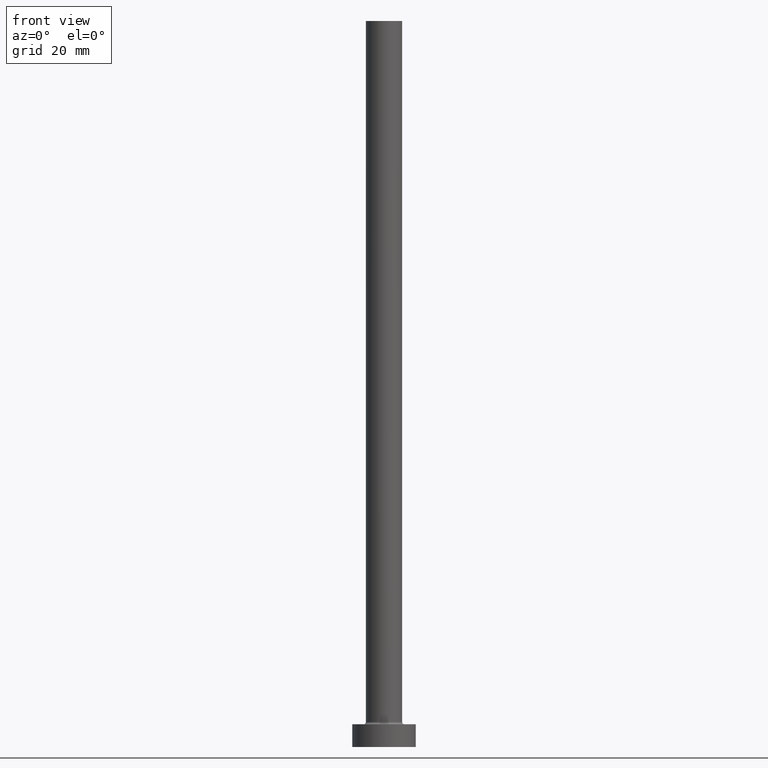
[diagram: clean part render]
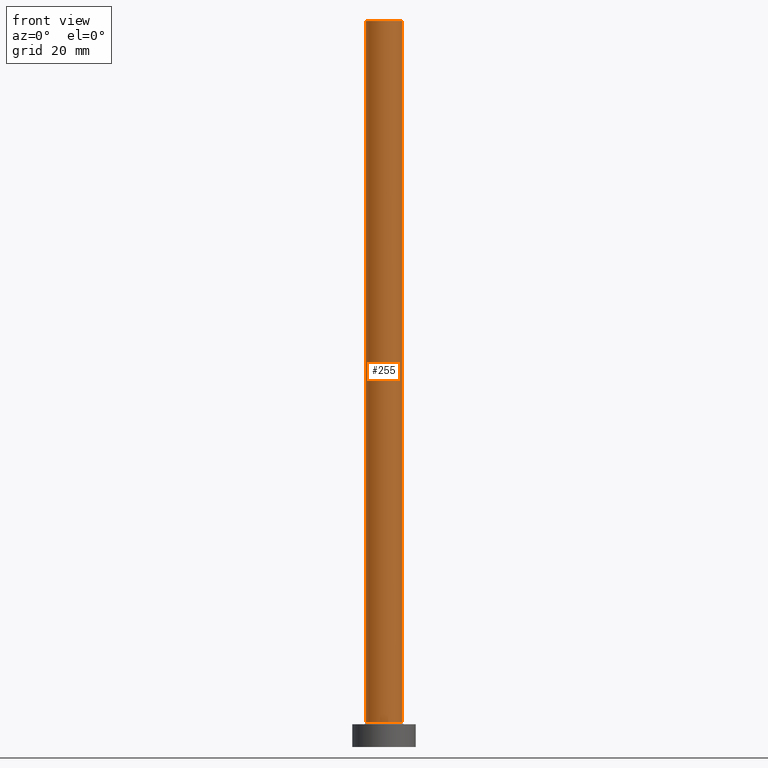
[diagram: same view with one face highlighted and labeled with its STEP entity id]
A machine part, front view. The second image highlights one B-rep face of the part: STEP entity #255.
In plain terms, the highlighted cylindrical surface (edge-blend (fillet) strip) has radius 4 mm, axis along (-0, -0, -1).
Its self-contained STEP definition (entity closure, byte-faithful):
#24 = DIRECTION ( 'NONE',  ( 1.000000000000000000, 0.000000000000000000, 0.000000000000000000 ) ) ;
#37 = VERTEX_POINT ( 'NONE', #348 ) ;
#39 = VERTEX_POINT ( 'NONE', #454 ) ;
#48 = CIRCLE ( 'NONE', #158, 4.000000000000000000 ) ;
#55 = CARTESIAN_POINT ( 'NONE',  ( 0.000000000000000000, 0.000000000000000000, 160.0000000000000000 ) ) ;
#65 = ORIENTED_EDGE ( 'NONE', *, *, #343, .F. ) ;
#67 = AXIS2_PLACEMENT_3D ( 'NONE', #352, #313, #24 ) ;
#74 = DIRECTION ( 'NONE',  ( 1.000000000000000000, 0.000000000000000000, 0.000000000000000000 ) ) ;
#82 = ORIENTED_EDGE ( 'NONE', *, *, #306, .T. ) ;
#115 = FACE_OUTER_BOUND ( 'NONE', #267, .T. ) ;
#120 = VERTEX_POINT ( 'NONE', #320 ) ;
#123 = VECTOR ( 'NONE', #317, 1000.000000000000000 ) ;
#129 = VECTOR ( 'NONE', #269, 1000.000000000000000 ) ;
#132 = LINE ( 'NONE', #281, #123 ) ;
#140 = CIRCLE ( 'NONE', #67, 4.000000000000000000 ) ;
#143 = AXIS2_PLACEMENT_3D ( 'NONE', #55, #153, #261 ) ;
#153 = DIRECTION ( 'NONE',  ( -0.000000000000000000, -0.000000000000000000, -1.000000000000000000 ) ) ;
#156 = LINE ( 'NONE', #446, #129 ) ;
#158 = AXIS2_PLACEMENT_3D ( 'NONE', #428, #395, #74 ) ;
#165 = EDGE_CURVE ( 'NONE', #39, #120, #48, .T. ) ;
#175 = ORIENTED_EDGE ( 'NONE', *, *, #165, .T. ) ;
#255 = ADVANCED_FACE ( 'NONE', ( #115 ), #417, .T. ) ;
#261 = DIRECTION ( 'NONE',  ( -1.000000000000000000, 0.000000000000000000, 0.000000000000000000 ) ) ;
#264 = VERTEX_POINT ( 'NONE', #302 ) ;
#267 = EDGE_LOOP ( 'NONE', ( #65, #364, #82, #175 ) ) ;
#269 = DIRECTION ( 'NONE',  ( -0.000000000000000000, -0.000000000000000000, -1.000000000000000000 ) ) ;
#281 = CARTESIAN_POINT ( 'NONE',  ( 4.000000000000000000, 4.898587196589412829E-16, 160.0000000000000000 ) ) ;
#302 = CARTESIAN_POINT ( 'NONE',  ( 4.000000000000000000, 4.898587196589412829E-16, 160.0000000000000000 ) ) ;
#306 = EDGE_CURVE ( 'NONE', #37, #39, #156, .T. ) ;
#313 = DIRECTION ( 'NONE',  ( 0.000000000000000000, 0.000000000000000000, 1.000000000000000000 ) ) ;
#317 = DIRECTION ( 'NONE',  ( -0.000000000000000000, -0.000000000000000000, -1.000000000000000000 ) ) ;
#320 = CARTESIAN_POINT ( 'NONE',  ( 4.000000000000000000, 4.898587196589412829E-16, 5.500000000000005329 ) ) ;
#343 = EDGE_CURVE ( 'NONE', #264, #120, #132, .T. ) ;
#348 = CARTESIAN_POINT ( 'NONE',  ( -4.000000000000000000, 0.000000000000000000, 160.0000000000000000 ) ) ;
#352 = CARTESIAN_POINT ( 'NONE',  ( 0.000000000000000000, 0.000000000000000000, 160.0000000000000000 ) ) ;
#364 = ORIENTED_EDGE ( 'NONE', *, *, #377, .F. ) ;
#377 = EDGE_CURVE ( 'NONE', #37, #264, #140, .T. ) ;
#395 = DIRECTION ( 'NONE',  ( 0.000000000000000000, 0.000000000000000000, 1.000000000000000000 ) ) ;
#417 = CYLINDRICAL_SURFACE ( 'NONE', #143, 4.000000000000000000 ) ;
#428 = CARTESIAN_POINT ( 'NONE',  ( 0.000000000000000000, 0.000000000000000000, 5.500000000000005329 ) ) ;
#446 = CARTESIAN_POINT ( 'NONE',  ( -4.000000000000000000, 0.000000000000000000, 160.0000000000000000 ) ) ;
#454 = CARTESIAN_POINT ( 'NONE',  ( -4.000000000000000000, 0.000000000000000000, 5.500000000000005329 ) ) ;